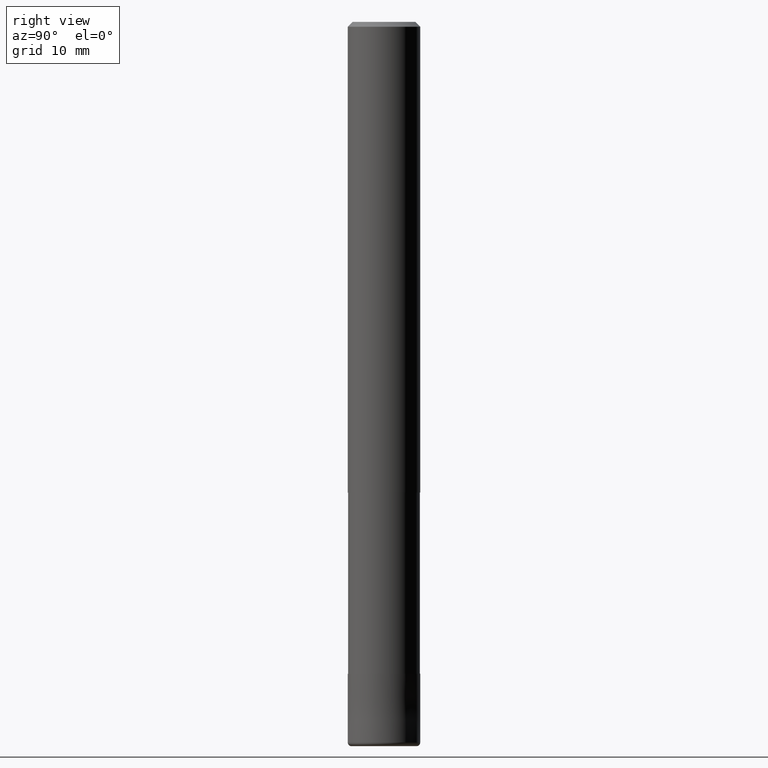
[diagram: clean part render]
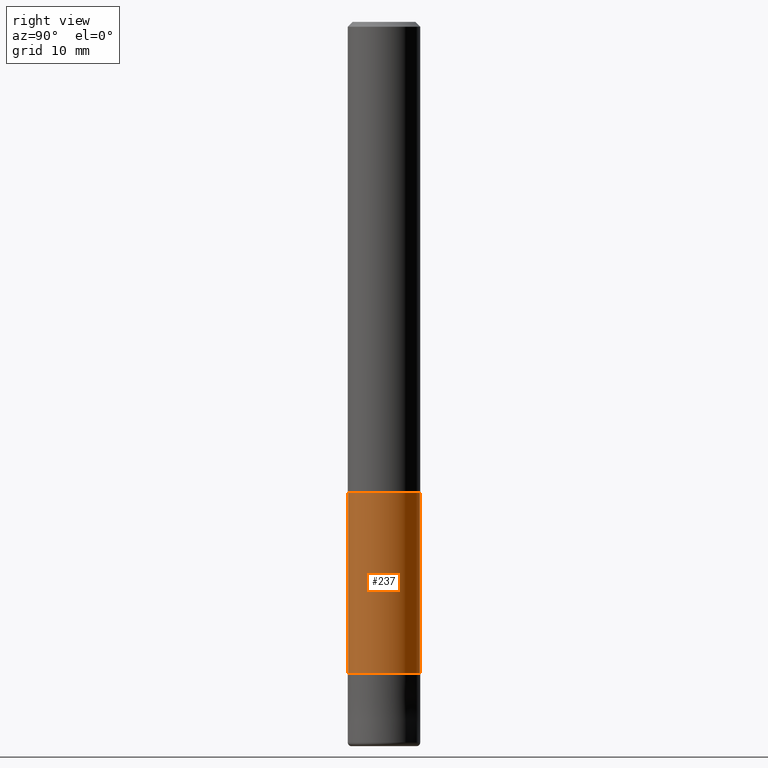
[diagram: same view with one face highlighted and labeled with its STEP entity id]
A machine part, right view. The second image highlights one B-rep face of the part: STEP entity #237.
In plain terms, the highlighted cylindrical surface (edge-blend (fillet) strip) has radius 2.975 mm, axis along (-0, -0, 1).
Its self-contained STEP definition (entity closure, byte-faithful):
#117=VERTEX_POINT('',#304);
#123=EDGE_CURVE('',#227,#151,#311,.T.);
#125=EDGE_CURVE('',#153,#151,#313,.T.);
#151=VERTEX_POINT('',#339);
#153=VERTEX_POINT('',#341);
#175=EDGE_CURVE('',#227,#117,#367,.T.);
#193=EDGE_CURVE('',#117,#153,#388,.T.);
#227=VERTEX_POINT('',#427);
#237=ADVANCED_FACE('',(#437),#438,.T.);
#304=CARTESIAN_POINT('',(0.0,2.97495,-54.0));
#311=CIRCLE('',#515,2.97495);
#313=LINE('',#518,#519);
#339=CARTESIAN_POINT('',(3.64314267230388E-016,-2.97495,-39.0));
#341=CARTESIAN_POINT('',(3.64314267230388E-016,-2.97495,-54.0));
#367=LINE('',#585,#586);
#388=CIRCLE('',#614,2.97495);
#427=CARTESIAN_POINT('',(0.0,2.97495,-39.0));
#437=FACE_OUTER_BOUND('',#675,.T.);
#438=CYLINDRICAL_SURFACE('',#676,2.97495);
#515=AXIS2_PLACEMENT_3D('',#755,#756,#757);
#518=CARTESIAN_POINT('',(3.64314267230388E-016,-2.97495,-46.5));
#519=VECTOR('',#758,1.0);
#585=CARTESIAN_POINT('',(-3.64314267230388E-016,2.97495,-46.5));
#586=VECTOR('',#826,1.0);
#614=AXIS2_PLACEMENT_3D('',#851,#852,#853);
#675=EDGE_LOOP('',(#911,#912,#913,#914));
#676=AXIS2_PLACEMENT_3D('',#915,#916,#917);
#755=CARTESIAN_POINT('',(0.0,0.0,-39.0));
#756=DIRECTION('',(0.0,0.0,-1.0));
#757=DIRECTION('',(0.0,1.0,0.0));
#758=DIRECTION('',(-0.0,-0.0,1.0));
#826=DIRECTION('',(0.0,0.0,-1.0));
#851=CARTESIAN_POINT('',(0.0,0.0,-54.0));
#852=DIRECTION('',(0.0,0.0,-1.0));
#853=DIRECTION('',(0.0,1.0,0.0));
#911=ORIENTED_EDGE('',*,*,#175,.F.);
#912=ORIENTED_EDGE('',*,*,#123,.T.);
#913=ORIENTED_EDGE('',*,*,#125,.F.);
#914=ORIENTED_EDGE('',*,*,#193,.F.);
#915=CARTESIAN_POINT('',(0.0,0.0,-46.5));
#916=DIRECTION('',(-0.0,-0.0,1.0));
#917=DIRECTION('',(0.0,1.0,0.0));